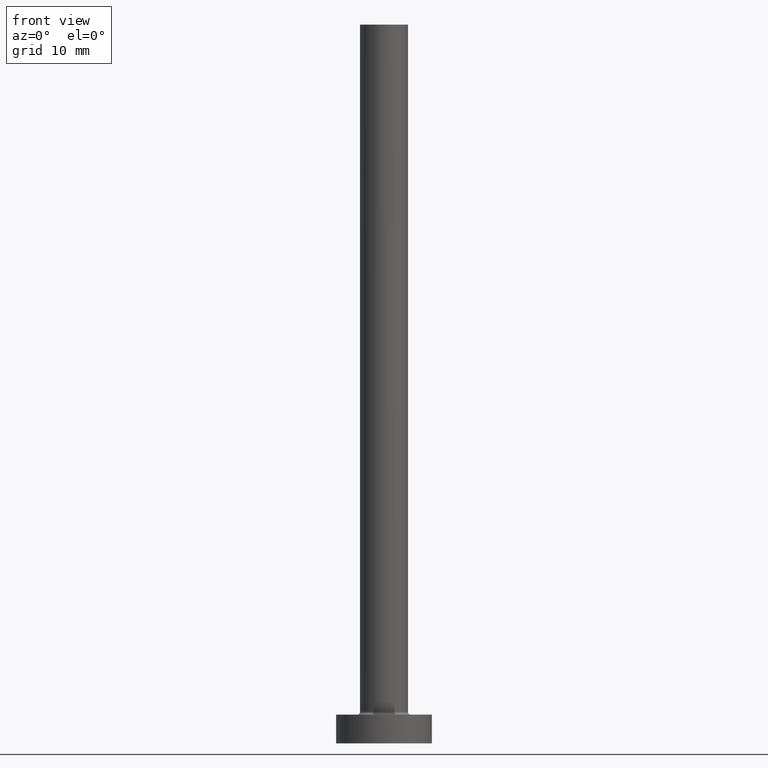
[diagram: clean part render]
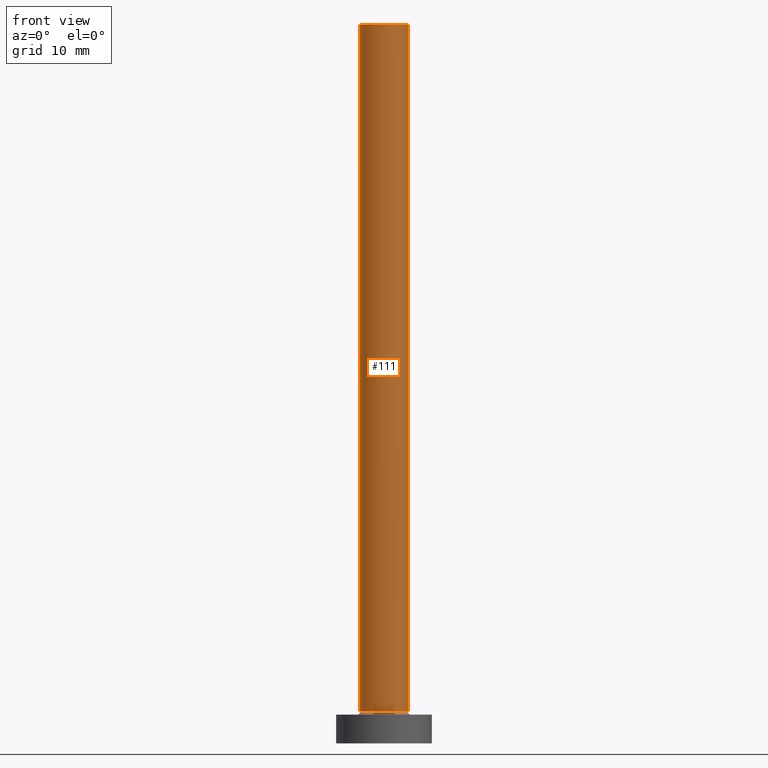
[diagram: same view with one face highlighted and labeled with its STEP entity id]
A machine part, front view. The second image highlights one B-rep face of the part: STEP entity #111.
In plain terms, the highlighted cylindrical surface (edge-blend (fillet) strip) has radius 2.5 mm, axis along (-0, -0, -1).
Its self-contained STEP definition (entity closure, byte-faithful):
#27 = DIRECTION ( 'NONE',  ( -0.000000000000000000, -0.000000000000000000, -1.000000000000000000 ) ) ;
#40 = CARTESIAN_POINT ( 'NONE',  ( 0.000000000000000000, 0.000000000000000000, 75.00000000000001421 ) ) ;
#41 = DIRECTION ( 'NONE',  ( -1.000000000000000000, 0.000000000000000000, 0.000000000000000000 ) ) ;
#50 = VERTEX_POINT ( 'NONE', #360 ) ;
#52 = CARTESIAN_POINT ( 'NONE',  ( 2.500000000000000000, 3.061616997868383141E-16, 75.00000000000001421 ) ) ;
#54 = CIRCLE ( 'NONE', #115, 2.500000000000000000 ) ;
#69 = LINE ( 'NONE', #211, #362 ) ;
#76 = CARTESIAN_POINT ( 'NONE',  ( 0.000000000000000000, 0.000000000000000000, 75.00000000000001421 ) ) ;
#78 = EDGE_CURVE ( 'NONE', #404, #349, #330, .T. ) ;
#111 = ADVANCED_FACE ( 'NONE', ( #285 ), #324, .T. ) ;
#115 = AXIS2_PLACEMENT_3D ( 'NONE', #290, #433, #181 ) ;
#136 = VERTEX_POINT ( 'NONE', #319 ) ;
#145 = EDGE_CURVE ( 'NONE', #50, #136, #54, .T. ) ;
#159 = VECTOR ( 'NONE', #27, 1000.000000000000000 ) ;
#180 = DIRECTION ( 'NONE',  ( -0.000000000000000000, -0.000000000000000000, -1.000000000000000000 ) ) ;
#181 = DIRECTION ( 'NONE',  ( 1.000000000000000000, 0.000000000000000000, 0.000000000000000000 ) ) ;
#198 = LINE ( 'NONE', #225, #159 ) ;
#211 = CARTESIAN_POINT ( 'NONE',  ( 2.500000000000000000, 3.061616997868383141E-16, 75.00000000000001421 ) ) ;
#216 = DIRECTION ( 'NONE',  ( 1.000000000000000000, 0.000000000000000000, 0.000000000000000000 ) ) ;
#225 = CARTESIAN_POINT ( 'NONE',  ( -2.500000000000000000, 0.000000000000000000, 75.00000000000001421 ) ) ;
#243 = CARTESIAN_POINT ( 'NONE',  ( -2.500000000000000000, 0.000000000000000000, 75.00000000000001421 ) ) ;
#251 = AXIS2_PLACEMENT_3D ( 'NONE', #76, #363, #216 ) ;
#260 = ORIENTED_EDGE ( 'NONE', *, *, #78, .F. ) ;
#261 = AXIS2_PLACEMENT_3D ( 'NONE', #40, #432, #41 ) ;
#285 = FACE_OUTER_BOUND ( 'NONE', #459, .T. ) ;
#290 = CARTESIAN_POINT ( 'NONE',  ( 0.000000000000000000, 0.000000000000000000, 3.299999999999997158 ) ) ;
#319 = CARTESIAN_POINT ( 'NONE',  ( 2.500000000000000000, 3.061616997868383141E-16, 3.299999999999997158 ) ) ;
#320 = EDGE_CURVE ( 'NONE', #404, #50, #198, .T. ) ;
#324 = CYLINDRICAL_SURFACE ( 'NONE', #261, 2.500000000000000000 ) ;
#330 = CIRCLE ( 'NONE', #251, 2.500000000000000000 ) ;
#334 = ORIENTED_EDGE ( 'NONE', *, *, #145, .T. ) ;
#349 = VERTEX_POINT ( 'NONE', #52 ) ;
#360 = CARTESIAN_POINT ( 'NONE',  ( -2.500000000000000000, 0.000000000000000000, 3.299999999999997158 ) ) ;
#362 = VECTOR ( 'NONE', #180, 1000.000000000000000 ) ;
#363 = DIRECTION ( 'NONE',  ( 0.000000000000000000, 0.000000000000000000, 1.000000000000000000 ) ) ;
#404 = VERTEX_POINT ( 'NONE', #243 ) ;
#426 = EDGE_CURVE ( 'NONE', #349, #136, #69, .T. ) ;
#432 = DIRECTION ( 'NONE',  ( -0.000000000000000000, -0.000000000000000000, -1.000000000000000000 ) ) ;
#433 = DIRECTION ( 'NONE',  ( 0.000000000000000000, 0.000000000000000000, 1.000000000000000000 ) ) ;
#447 = ORIENTED_EDGE ( 'NONE', *, *, #320, .T. ) ;
#453 = ORIENTED_EDGE ( 'NONE', *, *, #426, .F. ) ;
#459 = EDGE_LOOP ( 'NONE', ( #453, #260, #447, #334 ) ) ;